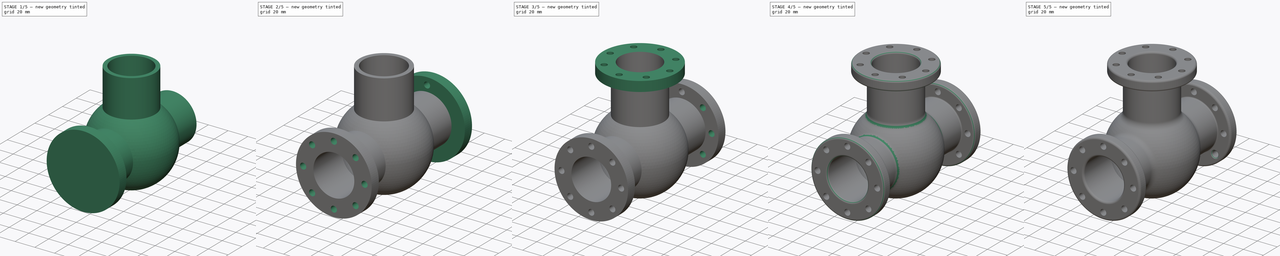
[diagram: build sequence overview — one tinted view per stage of 5, left to right]
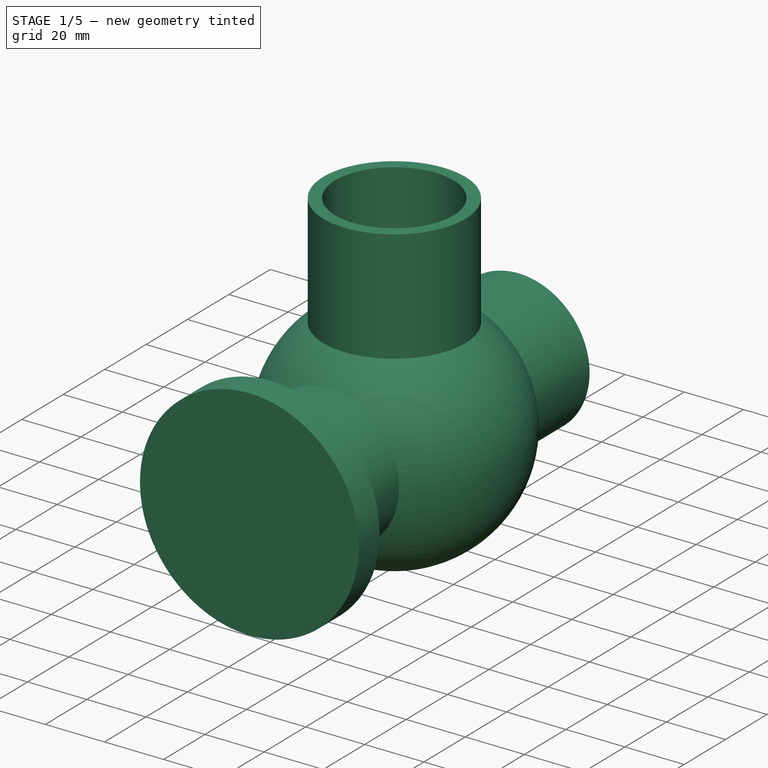
[diagram: stage 1 of 5 — iso view after this stage's code; geometry added in this stage tinted green]
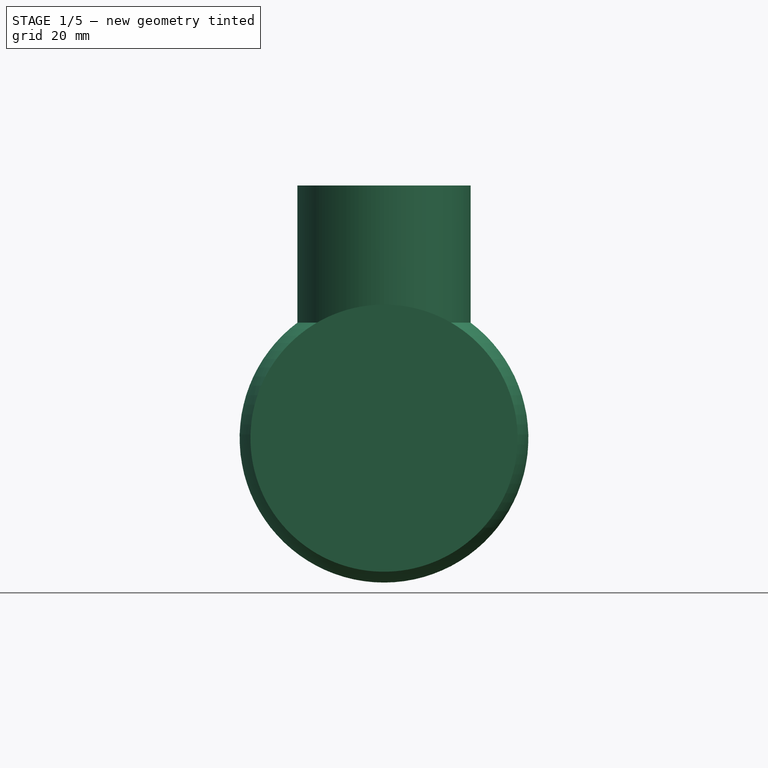
[diagram: stage 1 of 5 — front view after this stage's code; geometry added in this stage tinted green]
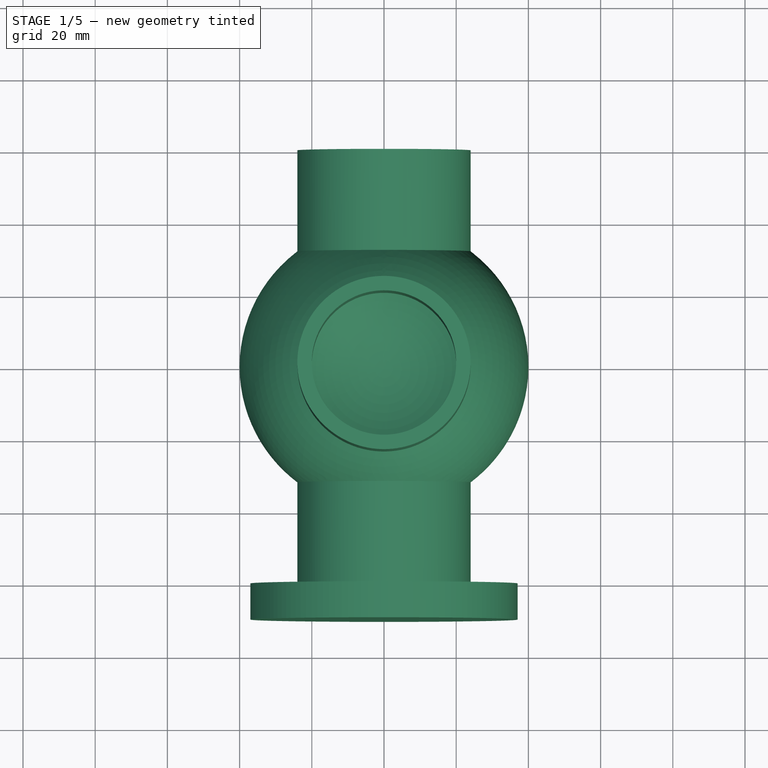
[diagram: stage 1 of 5 — top view after this stage's code; geometry added in this stage tinted green]
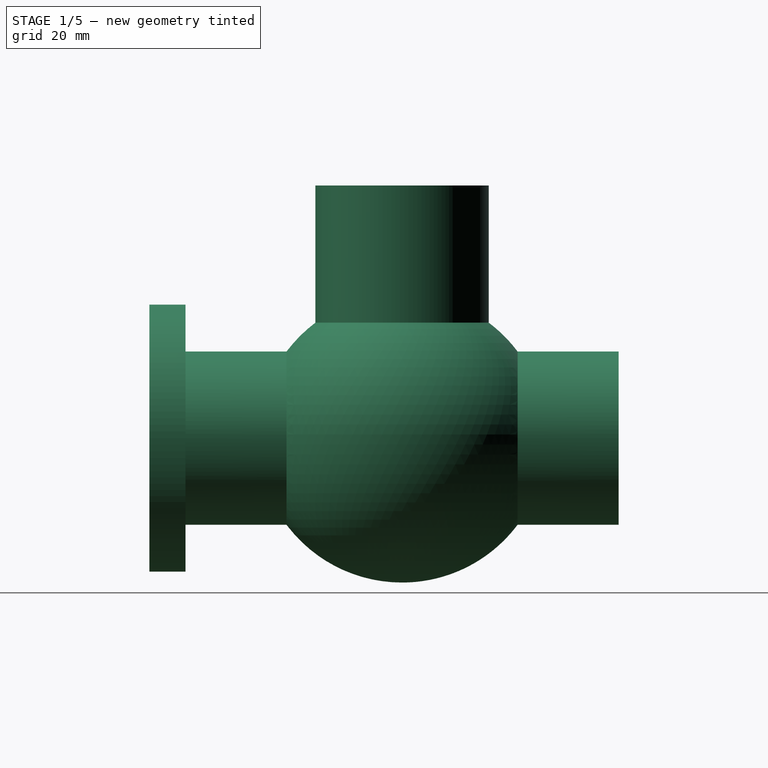
[diagram: stage 1 of 5 — right view after this stage's code; geometry added in this stage tinted green]
FCSTD DOCUMENT  (FreeCAD 0.16R6700 (Git))
Label: Tubo empalme en T
License: All rights reserved
LicenseURL: http://en.wikipedia.org/wiki/All_rights_reserved
objects: Sketcher::SketchObject×14, PartDesign::Pocket×6, PartDesign::Fillet×5, PartDesign::Pad×4, PartDesign::Chamfer×4, PartDesign::PolarPattern×3, PartDesign::Revolution×2, Part::MultiFuse×1, Part::Thickness×1, Part::Sweep×1, Part::Cut×1
note: 54 computed .brp shape members not serialized (recipe doc carries the construction recipe); baked Part::Feature solids carry a one-line shape summary decoded from their .brp

FEATURE [Sketcher::SketchObject] Sketch
  Placement = pos=(0,0,0) rot=(1,0,0;1.5708rad)
  sketch-geometry (1):
    g0: Circle CenterX=0 CenterY=0 CenterZ=0 NormalX=0 NormalY=0 NormalZ=1 Radius=20
  constraints (2):
    c: Coincident(g0,g-1)
    c: Radius(g0) = 20
FEATURE [PartDesign::Pad] Pad
  Length = 120
  Length2 = 100
  Midplane = true
  Placement = pos=(0,0,0) rot=(1,0,0;1.5708rad)
  Sketch = -> Sketch
  Type = 0
FEATURE [Sketcher::SketchObject] Sketch001
  Placement = pos=(0,0,0) rot=(0.57735,0.57735,0.57735;2.0944rad)
  sketch-geometry (4):
    g0: LineSegment StartX=0 StartY=70 StartZ=0 EndX=20 EndY=70 EndZ=0
    g1: LineSegment StartX=20 StartY=70 StartZ=0 EndX=20 EndY=0 EndZ=0
    g2: LineSegment StartX=20 StartY=0 StartZ=0 EndX=0 EndY=0 EndZ=0
    g3: LineSegment StartX=0 StartY=0 StartZ=0 EndX=0 EndY=70 EndZ=0
  constraints (11):
    c: Coincident(g0,g1)
    c: Coincident(g1,g2)
    c: Coincident(g2,g3)
    c: Coincident(g3,g0)
    c: Horizontal(g0)
    c: Horizontal(g2)
    c: Vertical(g1)
    c: Vertical(g3)
    c: Coincident(g2,g-1)
    c: DistanceX(g0,g0) = 20
    c: DistanceY(g1,g1) = 70
FEATURE [PartDesign::Revolution] Revolution
  Angle = 360
  Axis = (0,0,1)
  Base = (0,0,0)
  Placement = pos=(0,0,0) rot=(0.57735,0.57735,0.57735;2.0944rad)
  ReferenceAxis = -> Sketch001 [V_Axis]
  Reversed = true
  Sketch = -> Sketch001
FEATURE [Sketcher::SketchObject] Sketch002
  Placement = pos=(0,0,0) rot=(0.57735,0.57735,0.57735;2.0944rad)
  sketch-geometry (2):
    g0: ArcOfCircle CenterX=0 CenterY=0 CenterZ=0 NormalX=0 NormalY=0 NormalZ=1 Radius=36 StartAngle=4.71239 EndAngle=7.85398
    g1: LineSegment StartX=0 StartY=36 StartZ=0 EndX=0 EndY=-36 EndZ=0
  constraints (6):
    c: Coincident(g0,g-1)
    c: PointOnObject(g0,g-2)
    c: PointOnObject(g0,g-2)
    c: Radius(g0) = 36
    c: Coincident(g0,g1)
    c: Coincident(g0,g1)
FEATURE [PartDesign::Revolution] Revolution001
  Angle = 360
  Axis = (0,0,1)
  Base = (0,0,0)
  Placement = pos=(0,0,0) rot=(0.57735,0.57735,0.57735;2.0944rad)
  ReferenceAxis = -> Sketch002 [V_Axis]
  Reversed = true
  Sketch = -> Sketch002
FEATURE [Part::MultiFuse] Fusion
  Shapes = -> [Revolution001,Revolution,Pad]
FEATURE [Part::Thickness] Thickness
  Faces = -> Fusion [Face7,Face6,Face1]
  Intersection = false
  Join = 0
  Mode = 0
  SelfIntersection = false
  Value = 4
FEATURE [Sketcher::SketchObject] Sketch003
  Placement = pos=(0,-60,0) rot=(1,0,0;1.5708rad)
  Support = -> Thickness [Face5]
  sketch-geometry (1):
    g0: Circle CenterX=0 CenterY=0 CenterZ=0 NormalX=0 NormalY=0 NormalZ=1 Radius=37
  constraints (2):
    c: Coincident(g0,g-1)
    c: Radius(g0) = 37
FEATURE [PartDesign::Pad] Pad001
  Length = 10
  Length2 = 100
  Sketch = -> Sketch003
  Type = 0
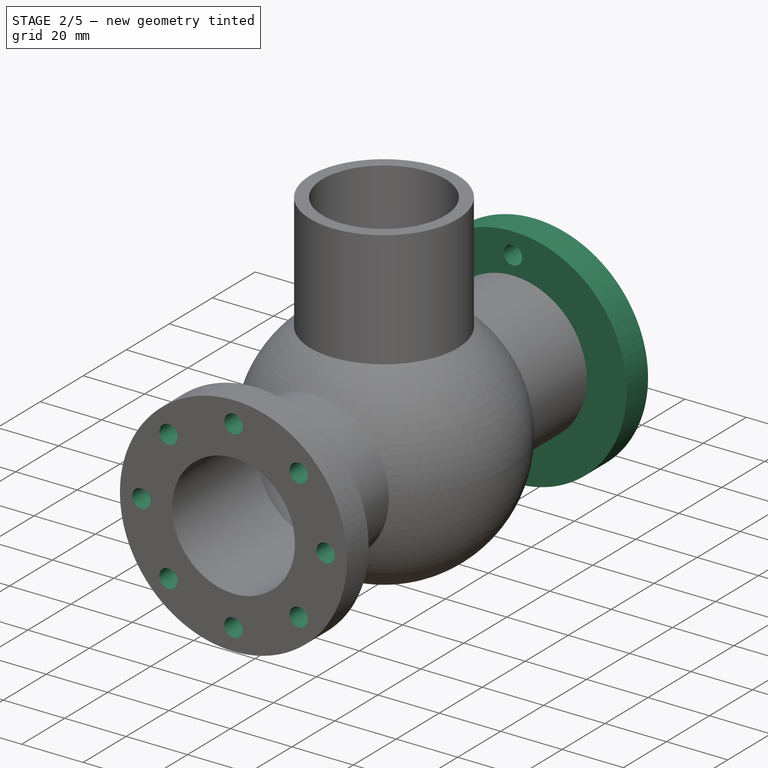
[diagram: stage 2 of 5 — iso view after this stage's code; geometry added in this stage tinted green]
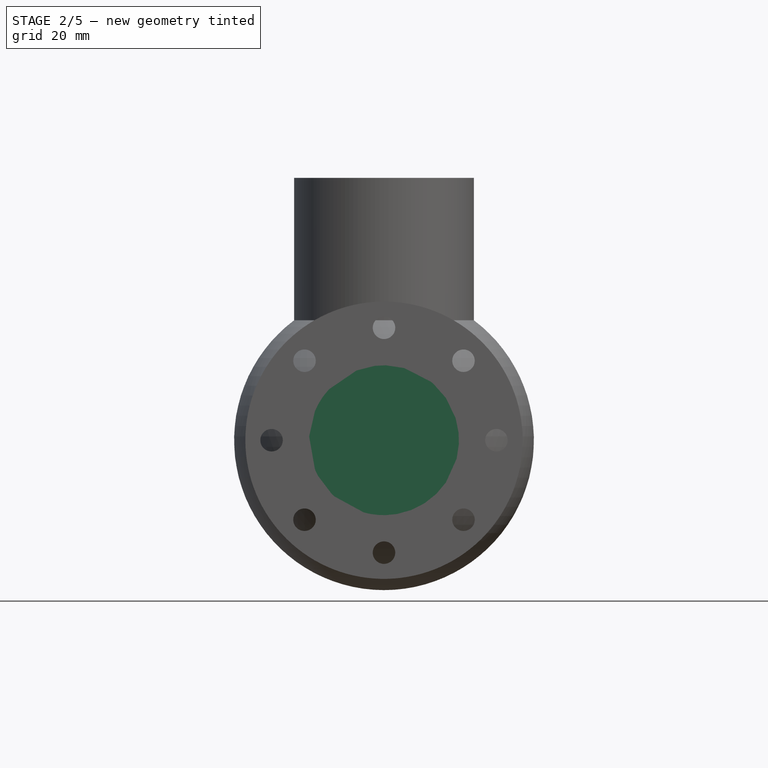
[diagram: stage 2 of 5 — front view after this stage's code; geometry added in this stage tinted green]
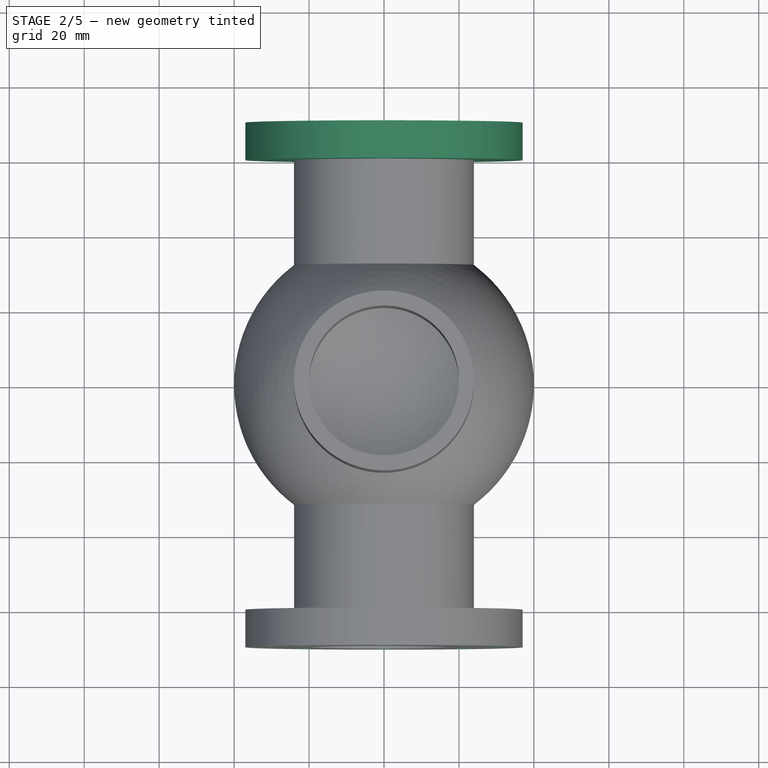
[diagram: stage 2 of 5 — top view after this stage's code; geometry added in this stage tinted green]
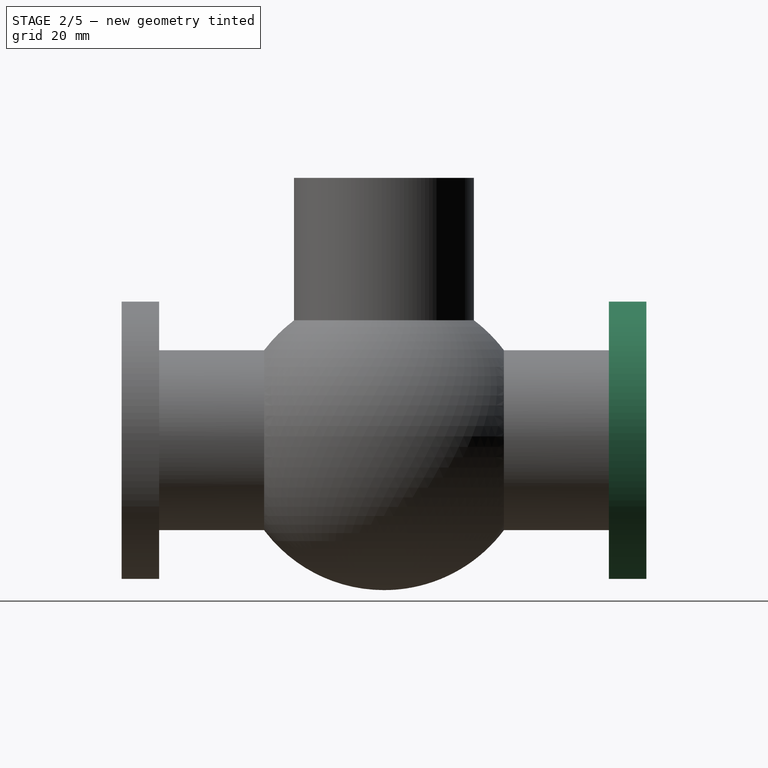
[diagram: stage 2 of 5 — right view after this stage's code; geometry added in this stage tinted green]
FEATURE [Sketcher::SketchObject] Sketch004
  Placement = pos=(0,-70,0) rot=(1,0,0;1.5708rad)
  Support = -> Pad001 [Face14]
  sketch-geometry (1):
    g0: Circle CenterX=0 CenterY=30 CenterZ=0 NormalX=0 NormalY=0 NormalZ=1 Radius=3
  constraints (3):
    c: PointOnObject(g0,g-2)
    c: DistanceY(g-1,g0) = 30
    c: Radius(g0) = 3
FEATURE [PartDesign::Pocket] Pocket
  Length = 10
  Sketch = -> Sketch004
  Type = 0
FEATURE [PartDesign::PolarPattern] PolarPattern
  Angle = 360
  Axis = -> Sketch004 [N_Axis]
  Occurrences = 8
  Originals = -> [Pocket]
FEATURE [Sketcher::SketchObject] Sketch005
  Placement = pos=(0,-70,0) rot=(1,0,0;1.5708rad)
  Support = -> PolarPattern [Face22]
  sketch-geometry (1):
    g0: Circle CenterX=0 CenterY=0 CenterZ=0 NormalX=0 NormalY=0 NormalZ=1 Radius=20
  constraints (3):
    c: PointOnObject(g0,g-2)
    c: Coincident(g0,g-1)
    c: Radius(g0) = 20
FEATURE [PartDesign::Pocket] Pocket001
  Length = 10
  Sketch = -> Sketch005
  Type = 0
FEATURE [Sketcher::SketchObject] Sketch006
  Placement = pos=(0,60,0) rot=(0,0.707107,0.707107;3.14159rad)
  Support = -> Pocket001 [Face2]
  sketch-geometry (1):
    g0: Circle CenterX=0 CenterY=0 CenterZ=0 NormalX=0 NormalY=0 NormalZ=1 Radius=37
  constraints (2):
    c: Radius(g0) = 37
    c: Coincident(g0,g-1)
FEATURE [PartDesign::Pad] Pad002
  Length = 10
  Length2 = 100
  Sketch = -> Sketch006
  Type = 0
FEATURE [Sketcher::SketchObject] Sketch007
  Placement = pos=(0,70,0) rot=(0,0.707107,0.707107;3.14159rad)
  Support = -> Pad002 [Face24]
  sketch-geometry (1):
    g0: Circle CenterX=0 CenterY=30 CenterZ=0 NormalX=0 NormalY=0 NormalZ=1 Radius=3
  constraints (3):
    c: PointOnObject(g0,g-2)
    c: DistanceY(g-1,g0) = 30
    c: Radius(g0) = 3
FEATURE [PartDesign::Pocket] Pocket002
  Length = 10
  Sketch = -> Sketch007
  Type = 0
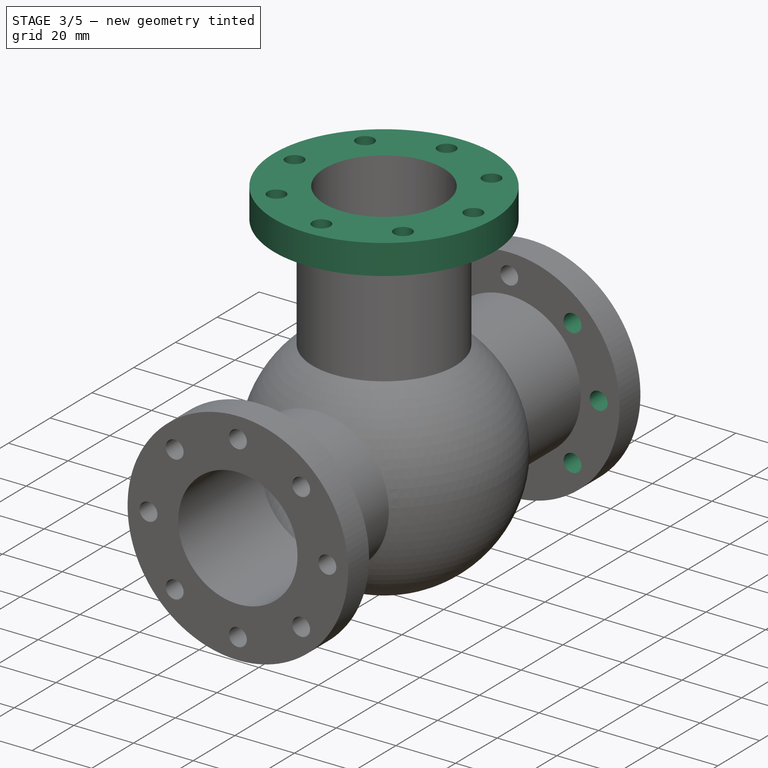
[diagram: stage 3 of 5 — iso view after this stage's code; geometry added in this stage tinted green]
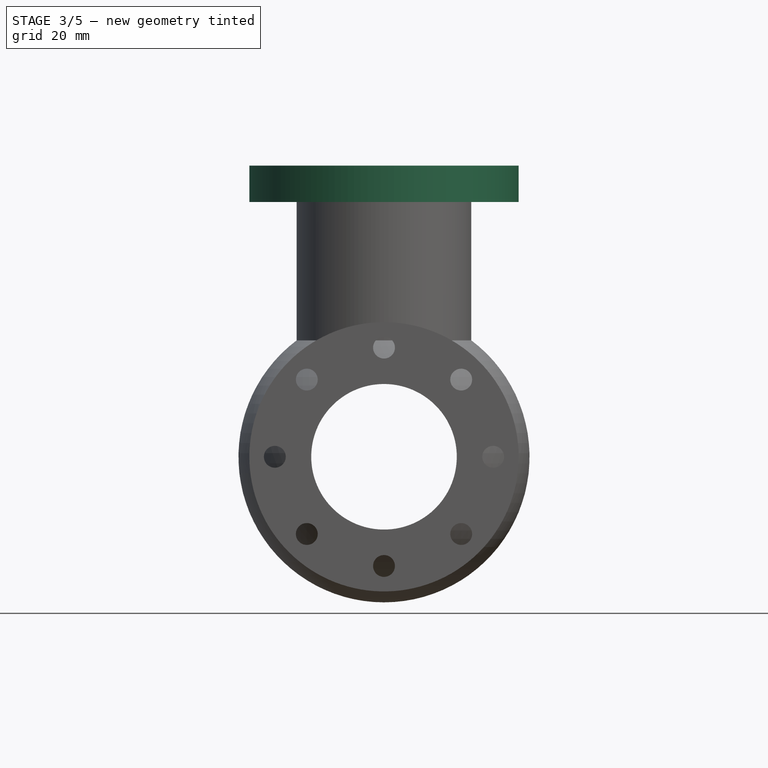
[diagram: stage 3 of 5 — front view after this stage's code; geometry added in this stage tinted green]
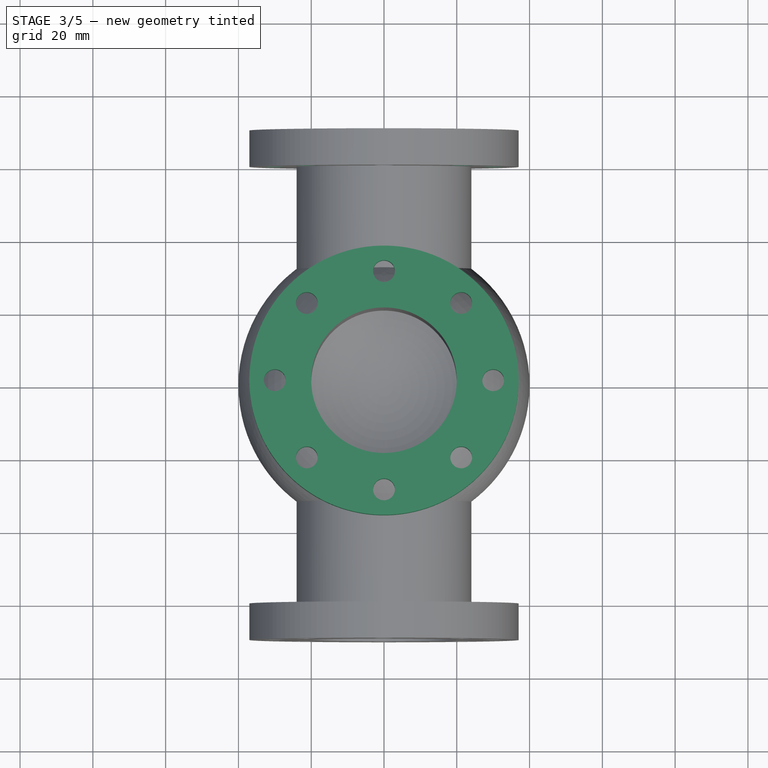
[diagram: stage 3 of 5 — top view after this stage's code; geometry added in this stage tinted green]
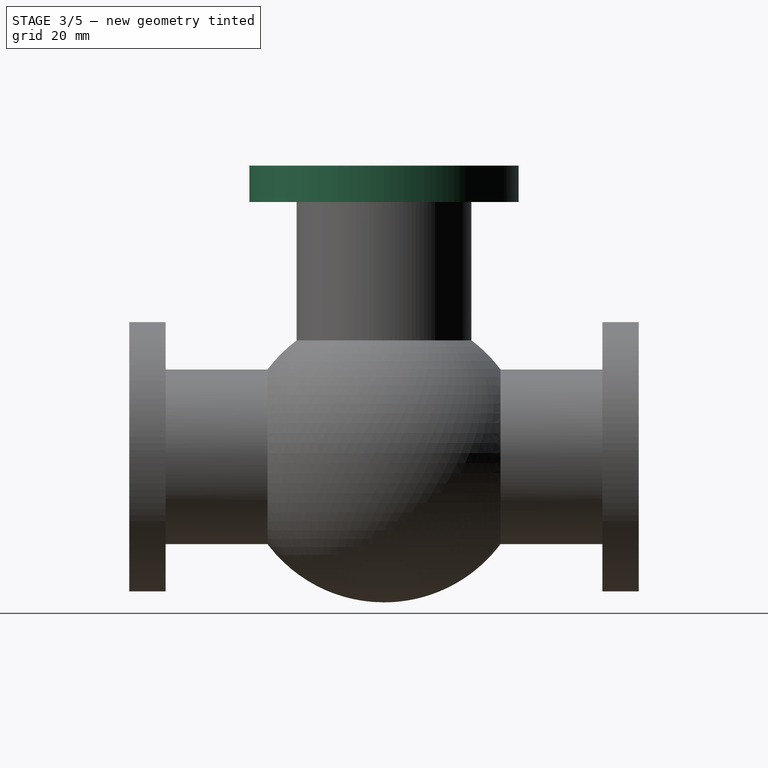
[diagram: stage 3 of 5 — right view after this stage's code; geometry added in this stage tinted green]
FEATURE [PartDesign::PolarPattern] PolarPattern001
  Angle = 360
  Axis = -> Sketch007 [N_Axis]
  Occurrences = 8
  Originals = -> [Pocket002]
FEATURE [Sketcher::SketchObject] Sketch008
  Placement = pos=(0,70,0) rot=(0,0.707107,0.707107;3.14159rad)
  Support = -> PolarPattern001 [Face32]
  sketch-geometry (1):
    g0: Circle CenterX=0 CenterY=0 CenterZ=0 NormalX=0 NormalY=0 NormalZ=1 Radius=20
  constraints (2):
    c: Coincident(g0,g-1)
    c: Radius(g0) = 20
FEATURE [PartDesign::Pocket] Pocket003
  Length = 10
  Sketch = -> Sketch008
  Type = 0
FEATURE [Sketcher::SketchObject] Sketch009
  Placement = pos=(0,0,70) rot=(0,0,1;0rad)
  Support = -> Pocket003 [Face6]
  sketch-geometry (1):
    g0: Circle CenterX=0 CenterY=0 CenterZ=0 NormalX=0 NormalY=0 NormalZ=1 Radius=37
  constraints (2):
    c: Radius(g0) = 37
    c: Coincident(g0,g-1)
FEATURE [PartDesign::Pad] Pad003
  Length = 10
  Length2 = 100
  Sketch = -> Sketch009
  Type = 0
FEATURE [Sketcher::SketchObject] Sketch010
  Placement = pos=(0,0,80) rot=(0,0,1;0rad)
  Support = -> Pad003 [Face35]
  sketch-geometry (1):
    g0: Circle CenterX=0 CenterY=30 CenterZ=0 NormalX=0 NormalY=0 NormalZ=1 Radius=3
  constraints (3):
    c: PointOnObject(g0,g-2)
    c: Radius(g0) = 3
    c: DistanceY(g-1,g0) = 30
FEATURE [PartDesign::Pocket] Pocket004
  Length = 10
  Sketch = -> Sketch010
  Type = 0
FEATURE [PartDesign::PolarPattern] PolarPattern002
  Angle = 360
  Axis = -> Sketch010 [N_Axis]
  Occurrences = 8
  Originals = -> [Pocket004]
FEATURE [Sketcher::SketchObject] Sketch011
  Placement = pos=(0,0,80) rot=(0,0,1;0rad)
  Support = -> PolarPattern002 [Face43]
  sketch-geometry (1):
    g0: Circle CenterX=0 CenterY=0 CenterZ=0 NormalX=0 NormalY=0 NormalZ=1 Radius=20
  constraints (2):
    c: Coincident(g0,g-1)
    c: Radius(g0) = 20
FEATURE [PartDesign::Pocket] Pocket005
  Length = 10
  Sketch = -> Sketch011
  Type = 0
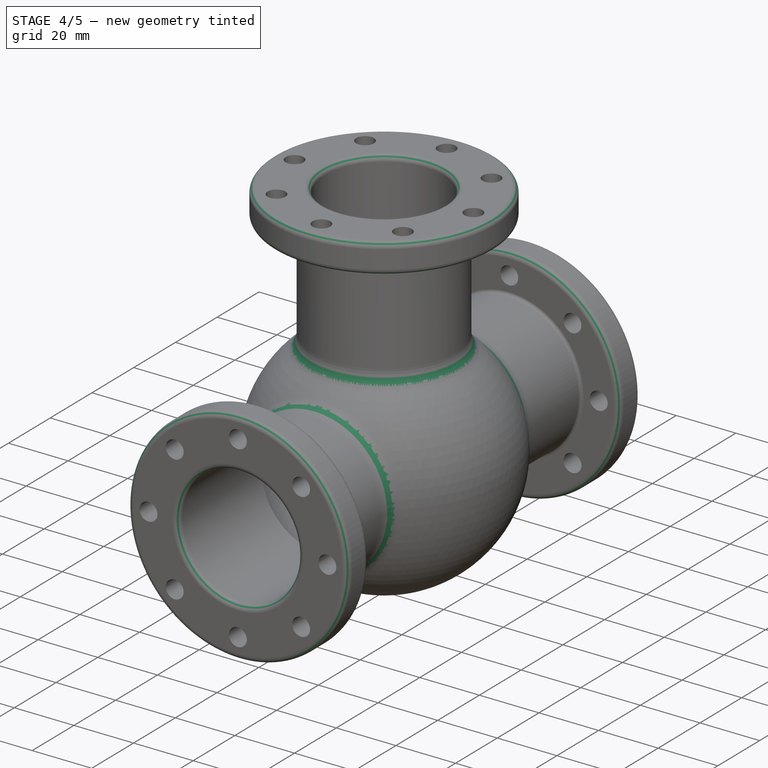
[diagram: stage 4 of 5 — iso view after this stage's code; geometry added in this stage tinted green]
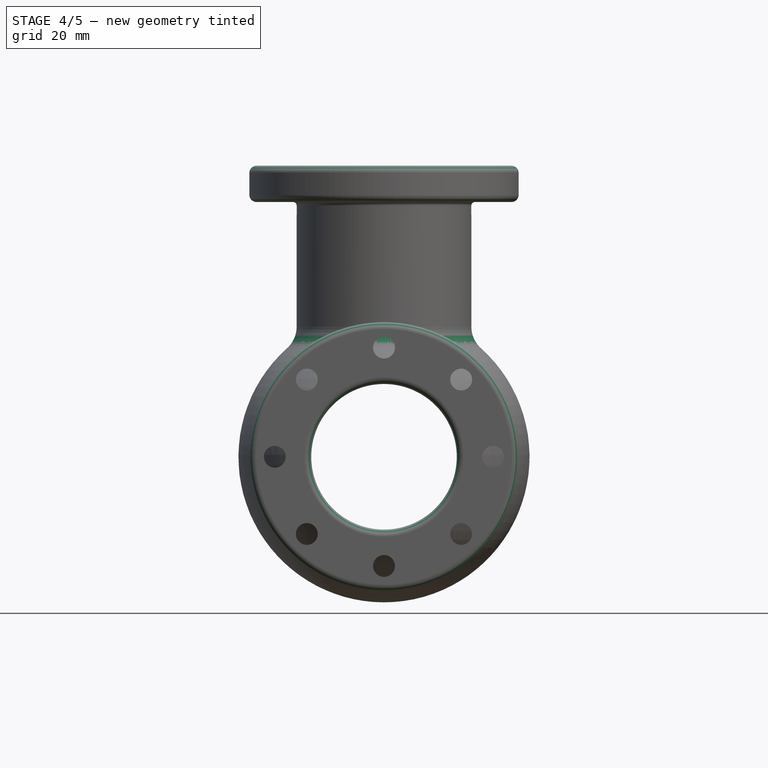
[diagram: stage 4 of 5 — front view after this stage's code; geometry added in this stage tinted green]
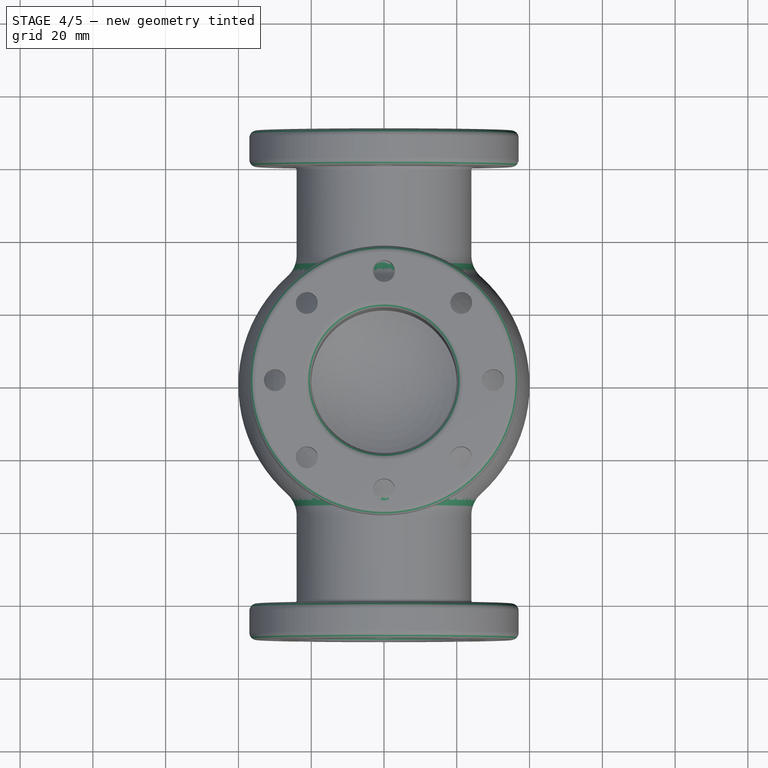
[diagram: stage 4 of 5 — top view after this stage's code; geometry added in this stage tinted green]
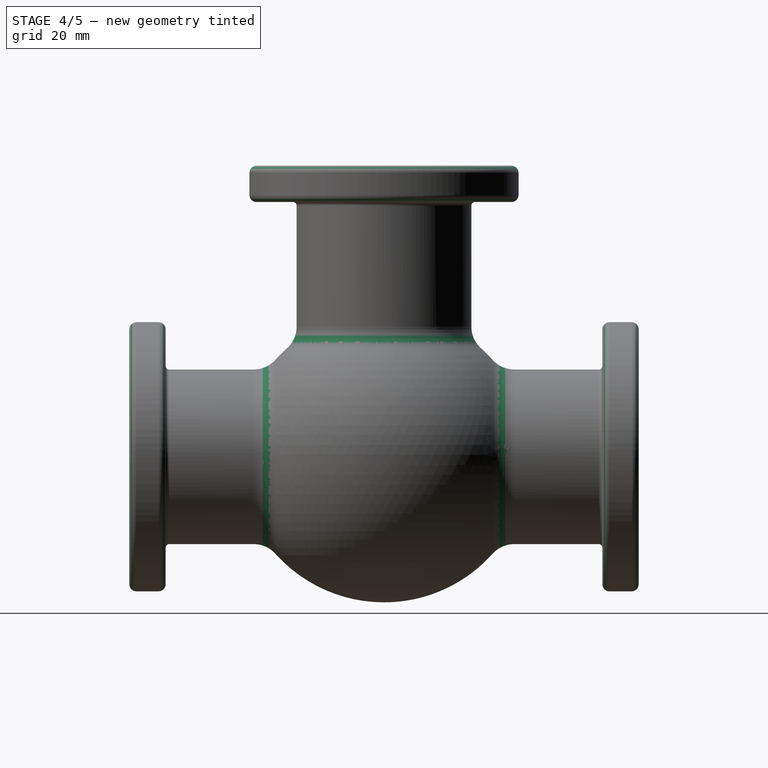
[diagram: stage 4 of 5 — right view after this stage's code; geometry added in this stage tinted green]
FEATURE [PartDesign::Fillet] Fillet
  Base = -> Pocket005 [Edge72,Edge81,Edge74,Edge76,Edge77]
  Radius = 8
FEATURE [PartDesign::Fillet] Fillet001
  Base = -> Fillet [Edge48,Edge119,Edge122]
  Radius = 2
FEATURE [PartDesign::Fillet] Fillet002
  Base = -> Fillet001 [Edge66,Edge83,Edge2]
  Radius = 2
FEATURE [PartDesign::Fillet] Fillet003
  Base = -> Fillet002 [Edge136,Edge32,Edge135]
  Radius = 2
FEATURE [PartDesign::Fillet] Fillet004
  Base = -> Fillet003 [Edge71,Edge13,Edge73]
  Radius = 1
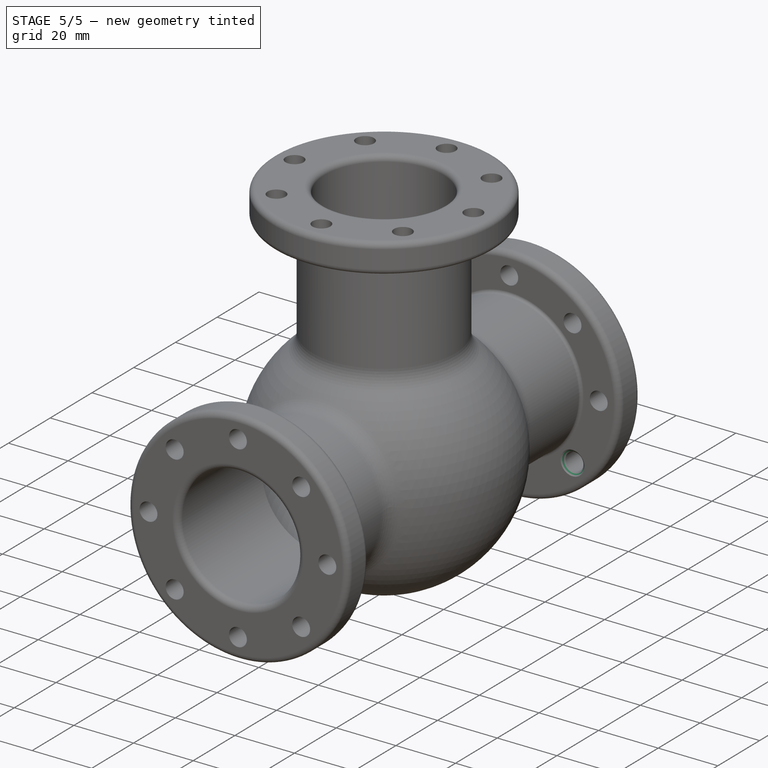
[diagram: stage 5 of 5 — iso view after this stage's code; geometry added in this stage tinted green]
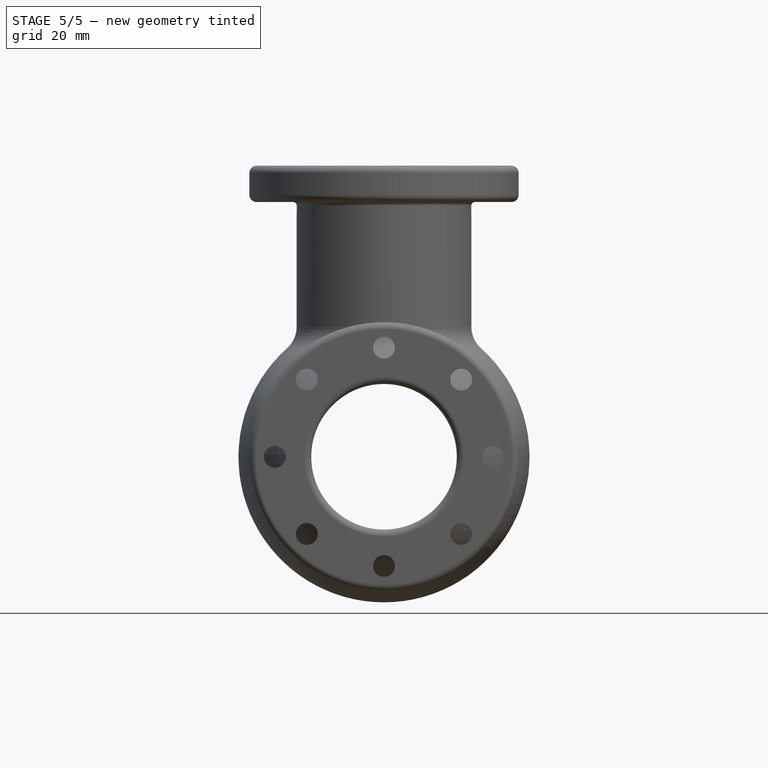
[diagram: stage 5 of 5 — front view after this stage's code; geometry added in this stage tinted green]
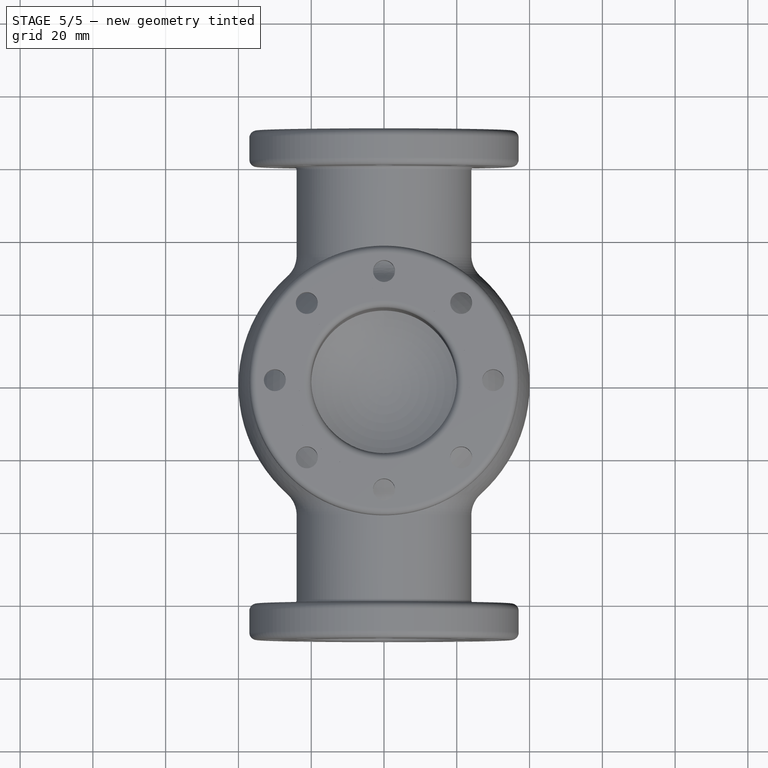
[diagram: stage 5 of 5 — top view after this stage's code; geometry added in this stage tinted green]
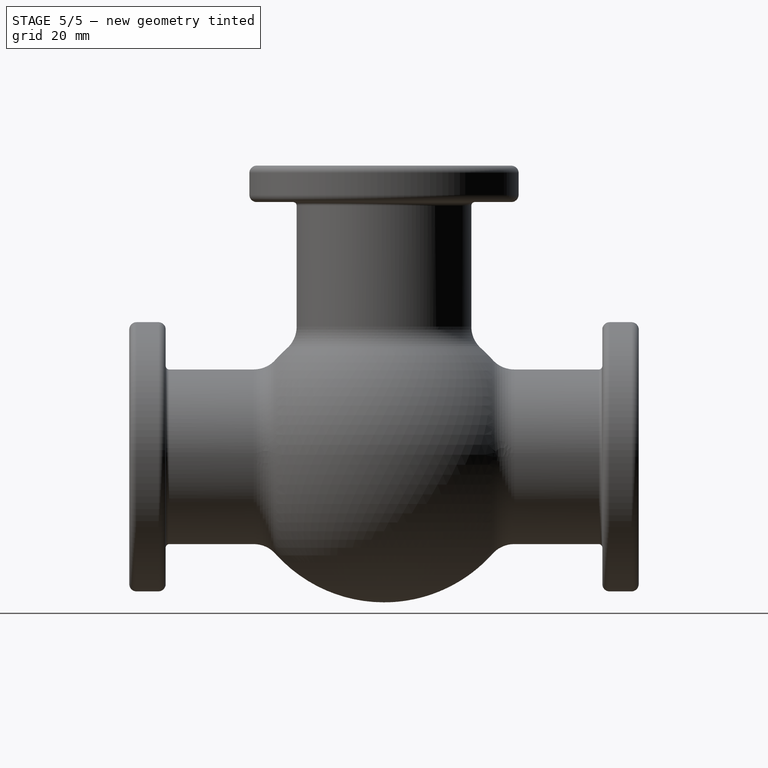
[diagram: stage 5 of 5 — right view after this stage's code; geometry added in this stage tinted green]
FEATURE [PartDesign::Chamfer] Chamfer
  Base = -> Fillet004 [Edge87]
  Size = 1
FEATURE [PartDesign::Chamfer] Chamfer001
  Base = -> Fillet004 [Edge94,Edge89,Edge87,Edge88,Edge91,Edge93,Edge92,Edge90]
  Size = 1
FEATURE [PartDesign::Chamfer] Chamfer002
  Base = -> Chamfer001 [Edge111,Edge115,Edge113,Edge114,Edge108,Edge109,Edge110,Edge112]
  Size = 1
FEATURE [PartDesign::Chamfer] Chamfer003
  Base = -> Chamfer002 [Edge119,Edge115,Edge113,Edge114,Edge112,Edge116,Edge118,Edge117]
  Size = 1
FEATURE [Sketcher::SketchObject] Sketch012
  ExternalGeometry = -> [Chamfer003]
  Placement = pos=(0,0,80) rot=(0,0,1;0rad)
  Support = -> Chamfer003 [Face22]
  sketch-geometry (1):
    g0: Circle CenterX=0 CenterY=0 CenterZ=0 NormalX=0 NormalY=0 NormalZ=1 Radius=24.5
  constraints (6):
    c: Coincident(g0,g-1)
    c: Radius(g-3) = 3
    c: Distance(g-1,g-3) = 30
    c: Radius(g-4) = 22
    c: Radius(g-4) = 22
    c: Radius(g0) = 24.5
FEATURE [Sketcher::SketchObject] Sketch013
  Placement = pos=(0,0,0) rot=(1,0,0;1.5708rad)
  sketch-geometry (1):
    g0: Circle CenterX=24.5 CenterY=80 CenterZ=0 NormalX=0 NormalY=0 NormalZ=1 Radius=1
  constraints (3):
    c: DistanceX(g-1,g0) = 24.5
    c: DistanceY(g-1,g0) = 80
    c: Radius(g0) = 1
FEATURE [Part::Sweep] Sweep
  Frenet = true
  Sections = -> [Sketch013]
  Solid = true
  Spine = -> Sketch012 [Edge1]
  Transition = 1
FEATURE [Part::Cut] Cut
  Base = -> Chamfer003
  Tool = -> Sweep
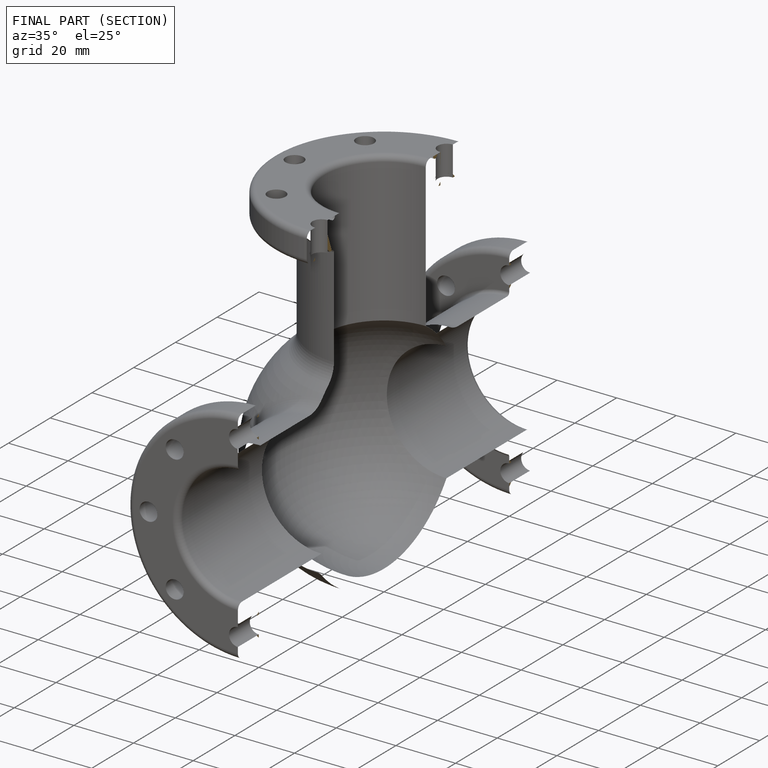
[diagram: finished part — half-section view (interior)]
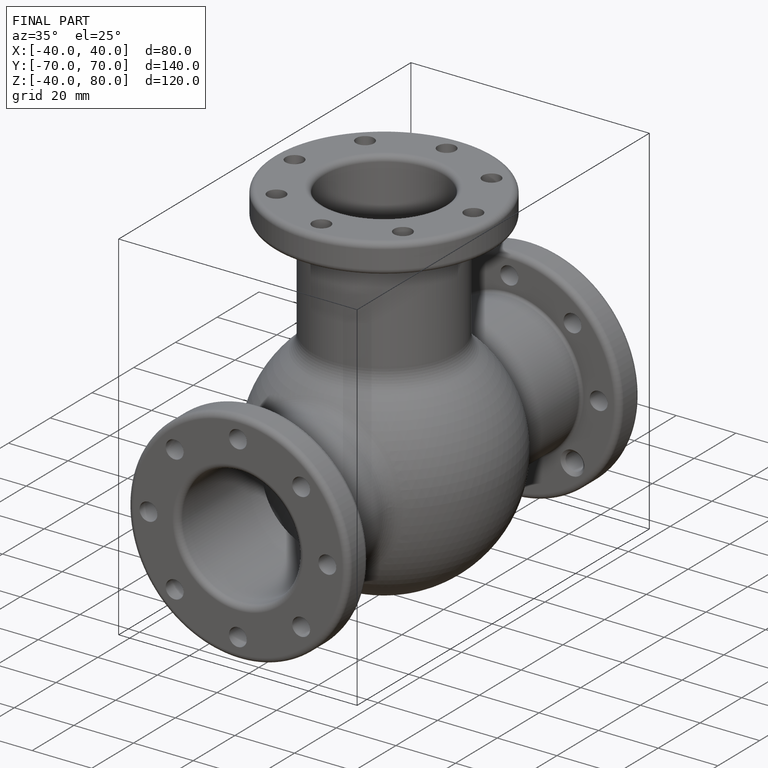
[diagram: finished part — iso view with bounding-box wireframe]
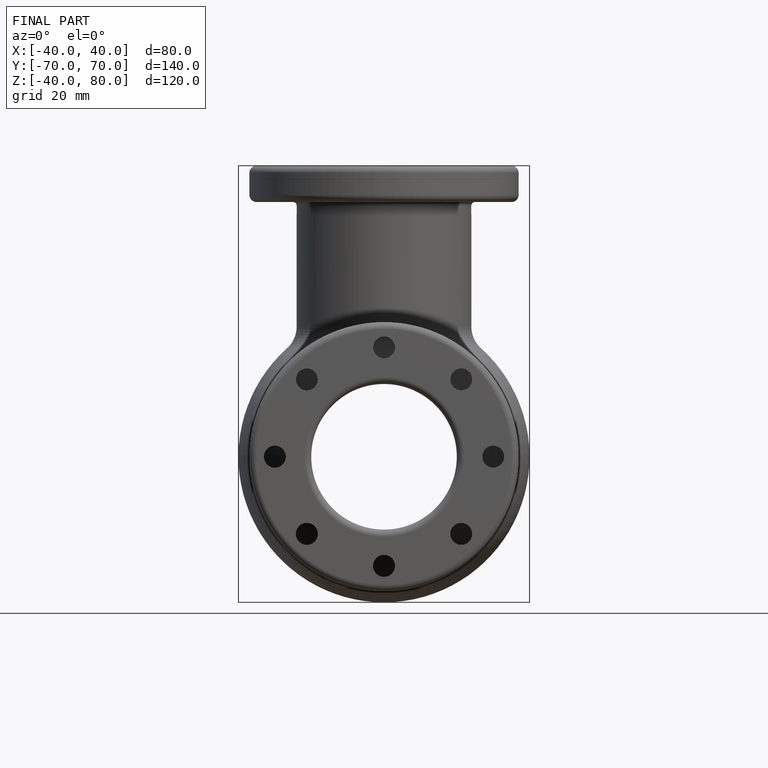
[diagram: finished part — front view with bounding-box wireframe]
